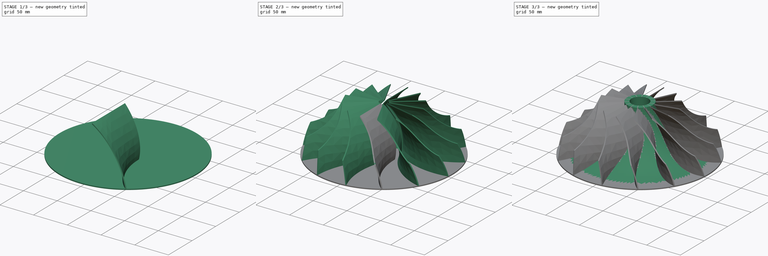
[diagram: build sequence overview — one tinted view per stage of 3, left to right]
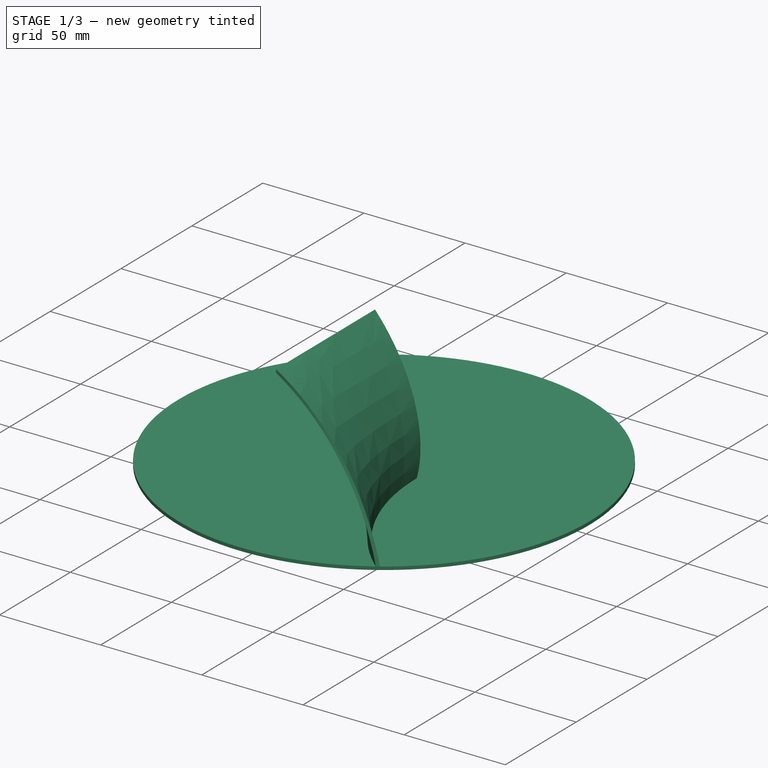
[diagram: stage 1 of 3 — iso view after this stage's code; geometry added in this stage tinted green]
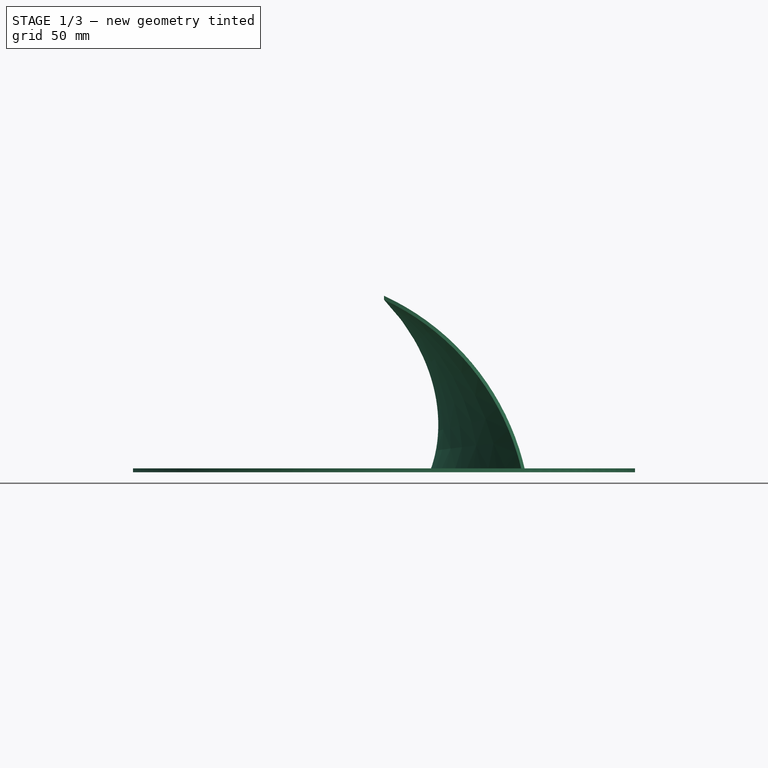
[diagram: stage 1 of 3 — front view after this stage's code; geometry added in this stage tinted green]
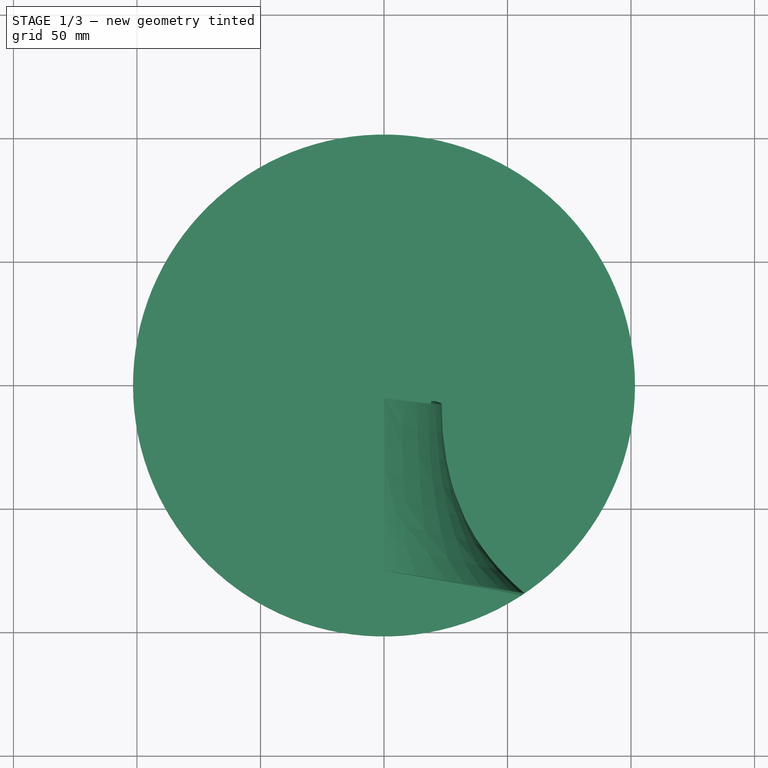
[diagram: stage 1 of 3 — top view after this stage's code; geometry added in this stage tinted green]
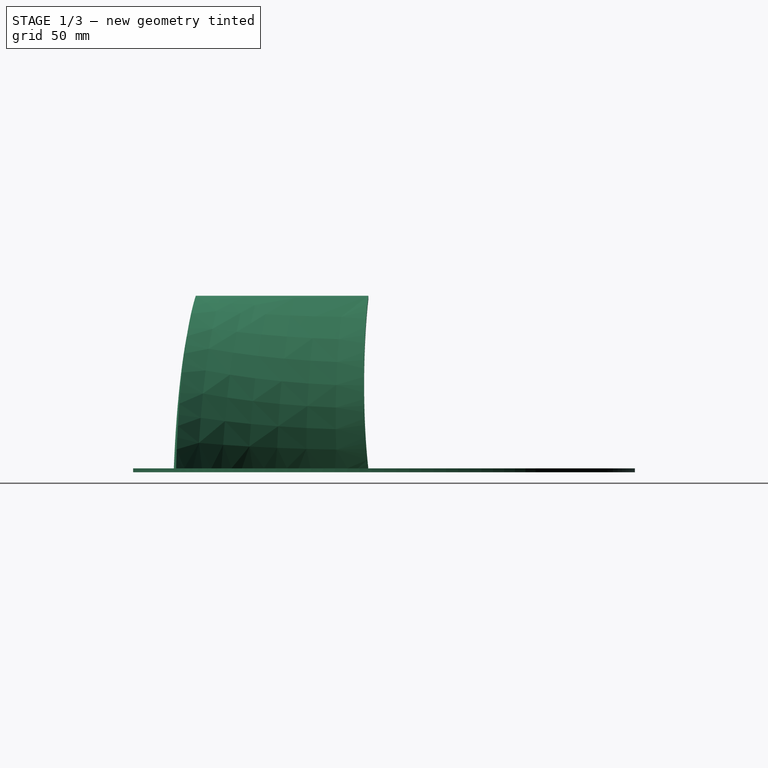
[diagram: stage 1 of 3 — right view after this stage's code; geometry added in this stage tinted green]
FCSTD DOCUMENT  (FreeCAD 0.21R33771 (Git))
Label: part
License: All rights reserved
LicenseURL: http://en.wikipedia.org/wiki/All_rights_reserved
objects: Sketcher::SketchObject×7, PartDesign::Plane×1, PartDesign::AdditivePipe×1, PartDesign::Pad×1, PartDesign::PolarPattern×1, PartDesign::Groove×1, PartDesign::Revolution×1, PartDesign::Pocket×1, PartDesign::Body×1
note: 20 computed .brp shape members not serialized (recipe doc carries the construction recipe); baked Part::Feature solids carry a one-line shape summary decoded from their .brp

FEATURE [Sketcher::SketchObject] Sketch
  FullyConstrained = true
  MapMode = 5
  Support = -> [XY_Plane]
  sketch-geometry (6):
    g0: Circle CenterX=0 CenterY=0 CenterZ=0 NormalX=0 NormalY=0 NormalZ=1 AngleXU=0 Radius=101.6
    g1: ArcOfCircle CenterX=122.237 CenterY=-6.34998 CenterZ=0 NormalX=0 NormalY=0 NormalZ=1 AngleXU=0 Radius=101.6 StartAngle=3.14159 EndAngle=4.01402
    g2: ArcOfCircle CenterX=122.237 CenterY=-6.34998 CenterZ=0 NormalX=0 NormalY=0 NormalZ=1 AngleXU=0 Radius=103.188 StartAngle=3.14159 EndAngle=4.0095
    g3: LineSegment StartX=19.05 StartY=-6.35 StartZ=0 EndX=20.6375 EndY=-6.35 EndZ=0
    g4: LineSegment StartX=19.05 StartY=-6.35 StartZ=0 EndX=19.05 EndY=0 EndZ=0
    g5: ArcOfCircle CenterX=0 CenterY=0 CenterZ=0 NormalX=0 NormalY=0 NormalZ=1 AngleXU=0 Radius=101.6 StartAngle=5.29068 EndAngle=5.30696
  constraints (17):
    c: Coincident(g0,g-1)
    c: Radius(g0) = 101.6
    c: DistanceY(g1,g0) = 6.35
    c: Coincident(g2,g1)
    c: Horizontal(g2,g1)
    c: DistanceX(g2,g1) = 1.5875
    c: PointOnObject(g1,g0)
    c: PointOnObject(g2,g0)
    c: Radius(g1) = 101.6
    c: Coincident(g3,g2)
    c: Coincident(g3,g1)
    c: DistanceX(g0,g2) = 19.05
    c: PointOnObject(g4,g-1)
    c: Tangent(g4,g2) = 1.5708
    c: Coincident(g5,g0)
    c: Coincident(g5,g2)
    c: Coincident(g5,g1)
FEATURE [Sketcher::SketchObject] Sketch001
  FullyConstrained = true
  MapMode = 5
  Placement = pos=(0,0,0) rot=(0.57735,0.57735,0.57735;2.0944rad)
  Support = -> [YZ_Plane]
  sketch-geometry (4):
    g0: LineSegment StartX=-76.2 StartY=69.85 StartZ=0 EndX=-6.35 EndY=69.85 EndZ=0
    g1: LineSegment StartX=-6.35 StartY=69.85 StartZ=0 EndX=-6.35 EndY=68.2625 EndZ=0
    g2: LineSegment StartX=-6.35 StartY=68.2625 StartZ=0 EndX=-76.2 EndY=68.2625 EndZ=0
    g3: LineSegment StartX=-76.2 StartY=68.2625 StartZ=0 EndX=-76.2 EndY=69.85 EndZ=0
  constraints (12):
    c: Coincident(g0,g1)
    c: Coincident(g1,g2)
    c: Coincident(g2,g3)
    c: Coincident(g3,g0)
    c: Horizontal(g0)
    c: Horizontal(g2)
    c: Vertical(g1)
    c: Vertical(g3)
    c: DistanceX(g1,g-1) = 6.35
    c: DistanceX(g2,g-1) = 76.2
    c: DistanceY(g3,g3) = 1.5875
    c: DistanceY(g-1,g0) = 69.85
FEATURE [PartDesign::Plane] DatumPlane
  Length = 262.528
  MapMode = 13
  Placement = pos=(18.5114,-79.1598,46.0375) rot=(0.056085,0.705994,0.705994;3.02954rad)
  ResizeMode = 0
  Support = -> [Sketch,Sketch001]
  Width = 125.153
FEATURE [Sketcher::SketchObject] Sketch002
  ExternalGeometry = -> [Sketch001,Sketch]
  FullyConstrained = true
  MapMode = 5
  Placement = pos=(18.5114,-79.1598,46.0375) rot=(0.056085,0.705994,0.705994;3.02954rad)
  Support = -> [DatumPlane]
  sketch-geometry (1):
    g0: ArcOfCircle CenterX=61.2239 CenterY=-70.0693 CenterZ=0 NormalX=0 NormalY=0 NormalZ=1 AngleXU=0 Radius=101.6 StartAngle=2.00213 EndAngle=2.9028
  constraints (3):
    c: Coincident(g0,g-4)
    c: Coincident(g0,g-3)
    c: Radius(g0) = 101.6
FEATURE [PartDesign::AdditivePipe] AdditivePipe
  AuxilleryCurvelinear = true
  AuxillerySpineTangent = false
  Binormal = (0,0,0)
  Mode = 0
  Profile = -> Sketch
  Refine = true
  Sections = -> [Sketch001]
  Spine = -> Sketch002
  SpineTangent = false
  Transformation = 1
  Transition = 0
FEATURE [Sketcher::SketchObject] Sketch003
  FullyConstrained = true
  MapMode = 5
  Support = -> [XY_Plane]
  sketch-geometry (1):
    g0: Circle CenterX=0 CenterY=0 CenterZ=0 NormalX=0 NormalY=0 NormalZ=1 AngleXU=0 Radius=101.6
  constraints (2):
    c: Coincident(g0,g-1)
    c: Radius(g0) = 101.6
FEATURE [PartDesign::Pad] Pad
  BaseFeature = -> AdditivePipe
  Direction = (0,0,1)
  Length = 1.5875
  Length2 = 10
  Profile = -> Sketch003
  ReferenceAxis = -> Sketch003 [N_Axis]
  Refine = true
  Reversed = true
  Type = 0
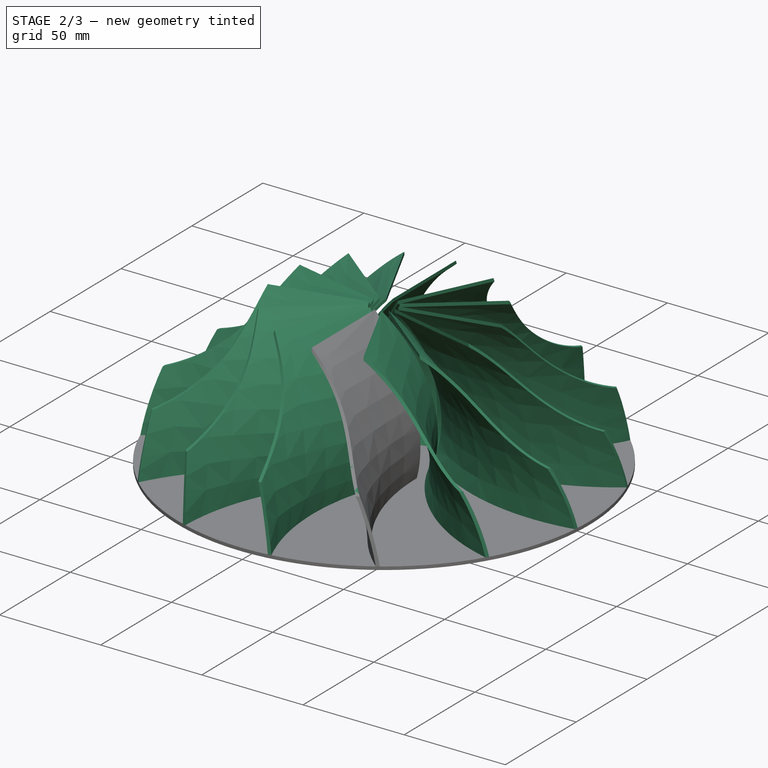
[diagram: stage 2 of 3 — iso view after this stage's code; geometry added in this stage tinted green]
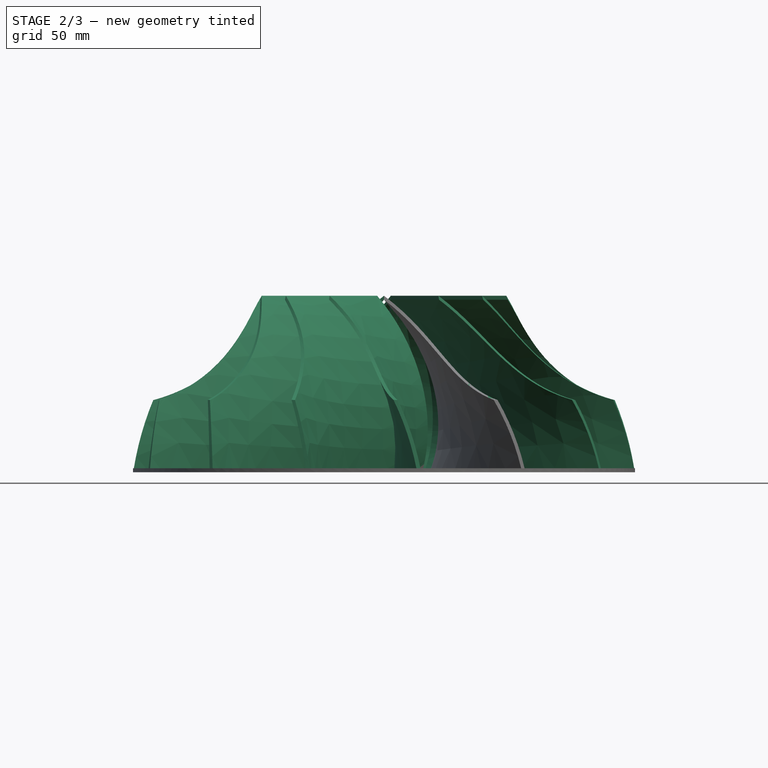
[diagram: stage 2 of 3 — front view after this stage's code; geometry added in this stage tinted green]
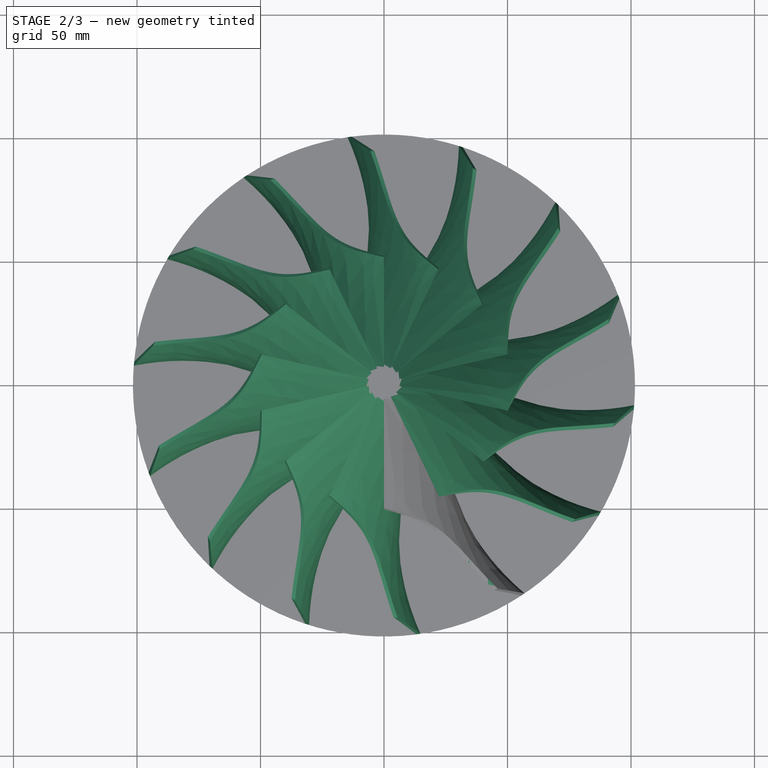
[diagram: stage 2 of 3 — top view after this stage's code; geometry added in this stage tinted green]
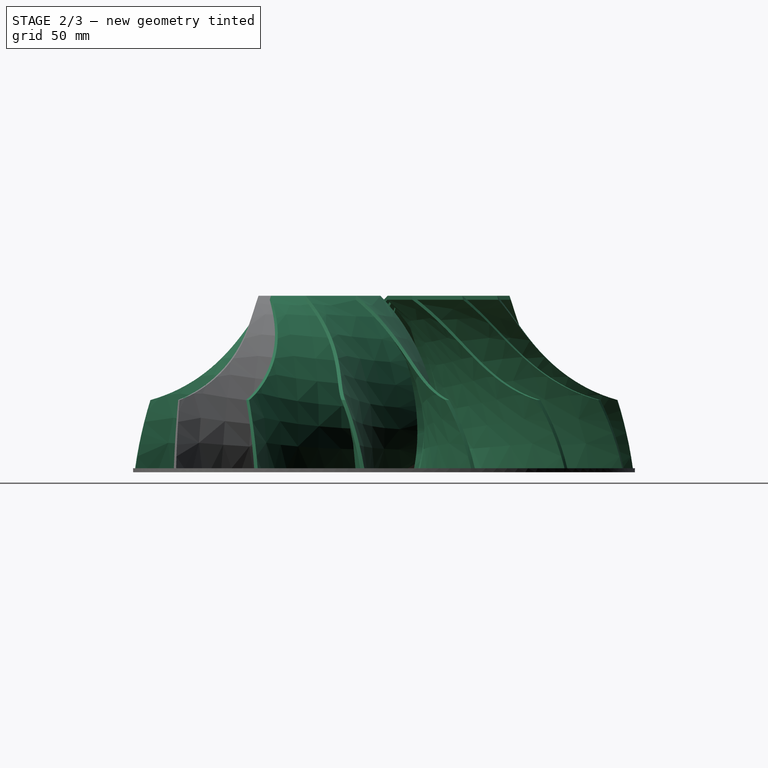
[diagram: stage 2 of 3 — right view after this stage's code; geometry added in this stage tinted green]
FEATURE [PartDesign::PolarPattern] PolarPattern
  Angle = 360
  Axis = -> Sketch [N_Axis]
  BaseFeature = -> Pad
  Occurrences = 14
  Originals = -> [AdditivePipe]
  Refine = true
FEATURE [Sketcher::SketchObject] Sketch004
  FullyConstrained = true
  MapMode = 5
  Placement = pos=(0,0,0) rot=(0.57735,0.57735,0.57735;2.0944rad)
  Support = -> [YZ_Plane]
  sketch-geometry (5):
    g0: ArcOfCircle CenterX=-111.375 CenterY=88.9 CenterZ=0 NormalX=0 NormalY=0 NormalZ=1 AngleXU=0 Radius=63.5 StartAngle=4.71239 EndAngle=5.97849
    g1: LineSegment StartX=-111.375 StartY=25.4 StartZ=0 EndX=-138.43 EndY=25.4 EndZ=0
    g2: LineSegment StartX=-138.43 StartY=25.4 StartZ=0 EndX=-138.43 EndY=90.678 EndZ=0
    g3: LineSegment StartX=-138.43 StartY=90.678 StartZ=0 EndX=-50.8 EndY=90.678 EndZ=0
    g4: LineSegment StartX=-50.8 StartY=90.678 StartZ=0 EndX=-50.8 EndY=69.85 EndZ=0
  constraints (15):
    c: DistanceY(g-1,g0) = 69.85
    c: DistanceY(g-1,g0) = 25.4
    c: DistanceX(g0,g-1) = 50.8
    c: Radius(g0) = 63.5
    c: Tangent(g0,g1) = 1.5708
    c: Coincident(g1,g2)
    c: Vertical(g2)
    c: Coincident(g2,g3)
    c: Horizontal(g3)
    c: Coincident(g3,g4)
    c: Coincident(g4,g0)
    c: Vertical(g4)
    c: Horizontal(g1)
    c: DistanceX(g1,g-1) = 138.43
    c: DistanceY(g-1,g3) = 90.678
FEATURE [PartDesign::Groove] Groove
  Angle = 360
  Axis = (-2e-16,3e-16,1)
  Base = (0,0,0)
  BaseFeature = -> PolarPattern
  Profile = -> Sketch004
  ReferenceAxis = -> Sketch004 [V_Axis]
  Refine = true
  Reversed = true
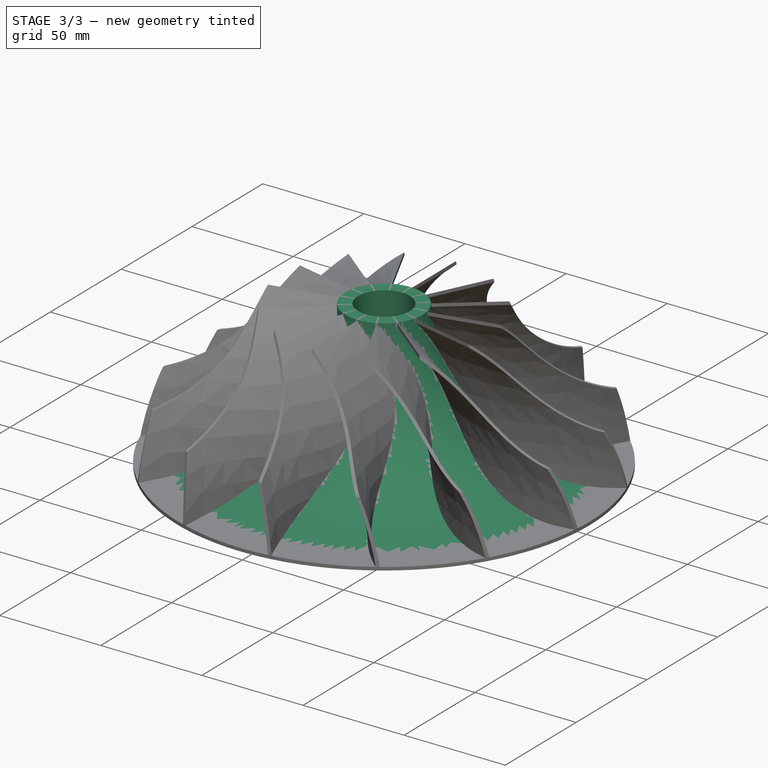
[diagram: stage 3 of 3 — iso view after this stage's code; geometry added in this stage tinted green]
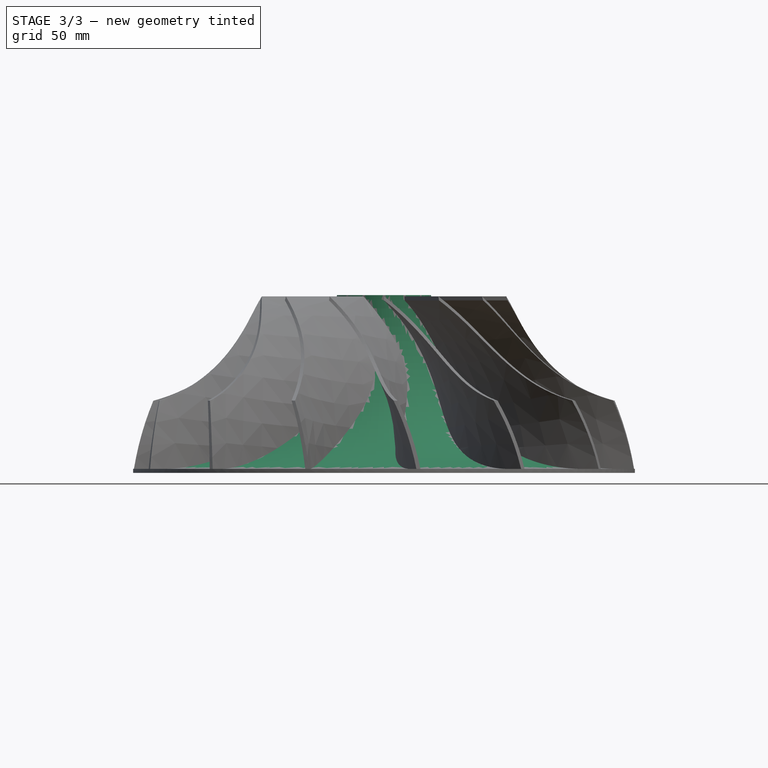
[diagram: stage 3 of 3 — front view after this stage's code; geometry added in this stage tinted green]
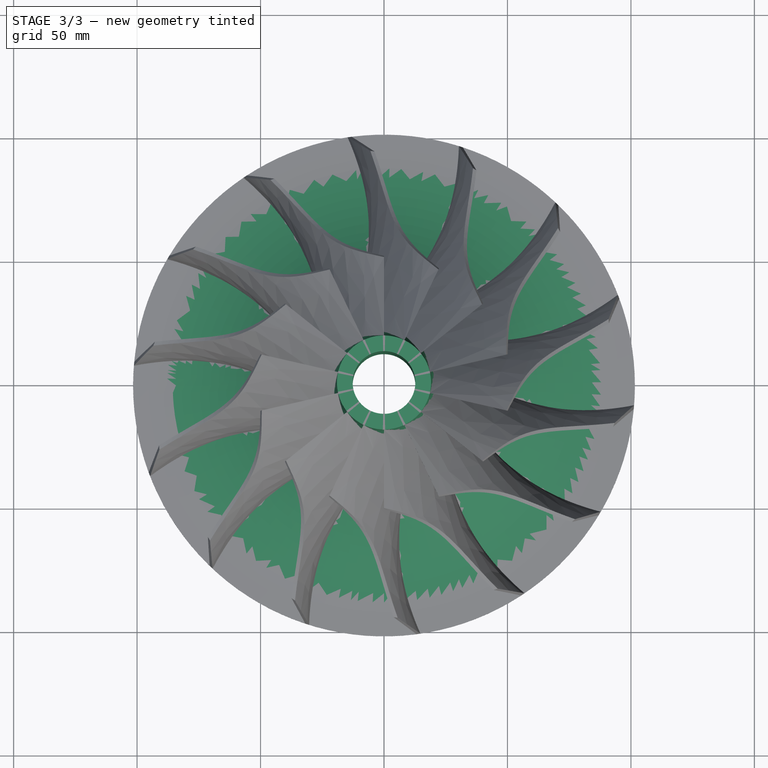
[diagram: stage 3 of 3 — top view after this stage's code; geometry added in this stage tinted green]
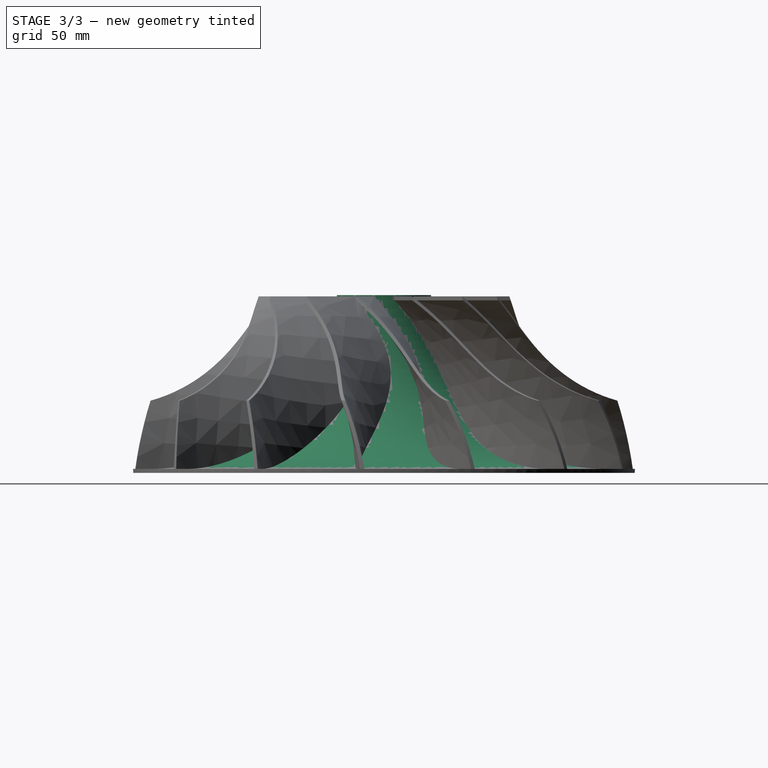
[diagram: stage 3 of 3 — right view after this stage's code; geometry added in this stage tinted green]
FEATURE [Sketcher::SketchObject] Sketch005
  FullyConstrained = true
  MapMode = 5
  Placement = pos=(0,0,0) rot=(1,0,0;1.5708rad)
  Support = -> [XZ_Plane]
  sketch-geometry (4):
    g0: LineSegment StartX=0 StartY=0 StartZ=0 EndX=0 EndY=70.358 EndZ=0
    g1: LineSegment StartX=0 StartY=70.358 StartZ=0 EndX=-19.05 EndY=70.358 EndZ=0
    g2: ArcOfCircle CenterX=-95.25 CenterY=76.4425 CenterZ=0 NormalX=0 NormalY=0 NormalZ=1 AngleXU=0 Radius=76.4425 StartAngle=4.71239 EndAngle=6.2035
    g3: LineSegment StartX=0 StartY=0 StartZ=0 EndX=-95.25 EndY=0 EndZ=0
  constraints (11):
    c: Coincident(g0,g-1)
    c: PointOnObject(g0,g-2)
    c: Coincident(g1,g0)
    c: Horizontal(g1)
    c: Coincident(g2,g1)
    c: DistanceX(g2,g0) = 95.25
    c: Coincident(g3,g0)
    c: PointOnObject(g3,g-1)
    c: Tangent(g2,g3) = 1.5708
    c: DistanceX(g1,g1) = 19.05
    c: DistanceY(g0,g0) = 70.358
FEATURE [PartDesign::Revolution] Revolution
  Angle = 360
  Axis = (1e-16,1e-16,1)
  Base = (0,0,0)
  BaseFeature = -> Groove
  Profile = -> Sketch005
  ReferenceAxis = -> Z_Axis
  Refine = true
FEATURE [Sketcher::SketchObject] Sketch006
  FullyConstrained = true
  MapMode = 5
  Placement = pos=(7.7e-15,7.7e-15,70.358) rot=(0,0,1;0rad)
  Support = -> [Revolution]
  sketch-geometry (1):
    g0: Circle CenterX=0 CenterY=0 CenterZ=0 NormalX=0 NormalY=0 NormalZ=1 AngleXU=0 Radius=12.7
  constraints (2):
    c: Coincident(g0,g-1)
    c: Radius(g0) = 12.7
FEATURE [PartDesign::Pocket] Pocket
  BaseFeature = -> Revolution
  Direction = (-1e-16,-1e-16,-1)
  Length = 5
  Length2 = 5
  Profile = -> Sketch006
  ReferenceAxis = -> Sketch006 [N_Axis]
  Refine = true
  Type = 1
FEATURE [PartDesign::Body] Body
  Group = -> [Sketch,Sketch001,DatumPlane,Sketch002,AdditivePipe,Sketch003,Pad,PolarPattern,Sketch004,Groove,Sketch005,Revolution,Sketch006,Pocket]
  Origin = -> Origin
  Tip = -> Pocket
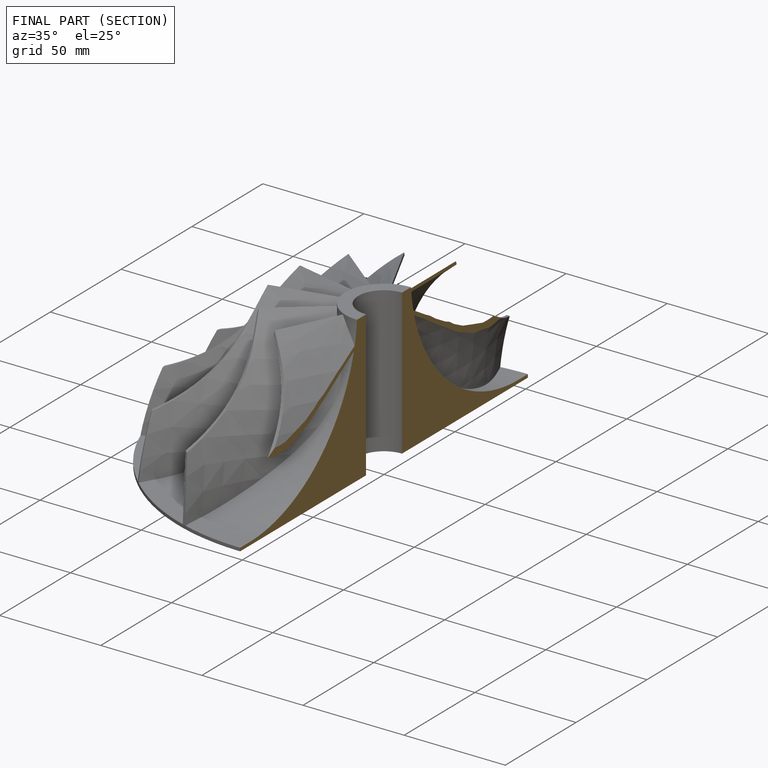
[diagram: finished part — half-section view (interior)]
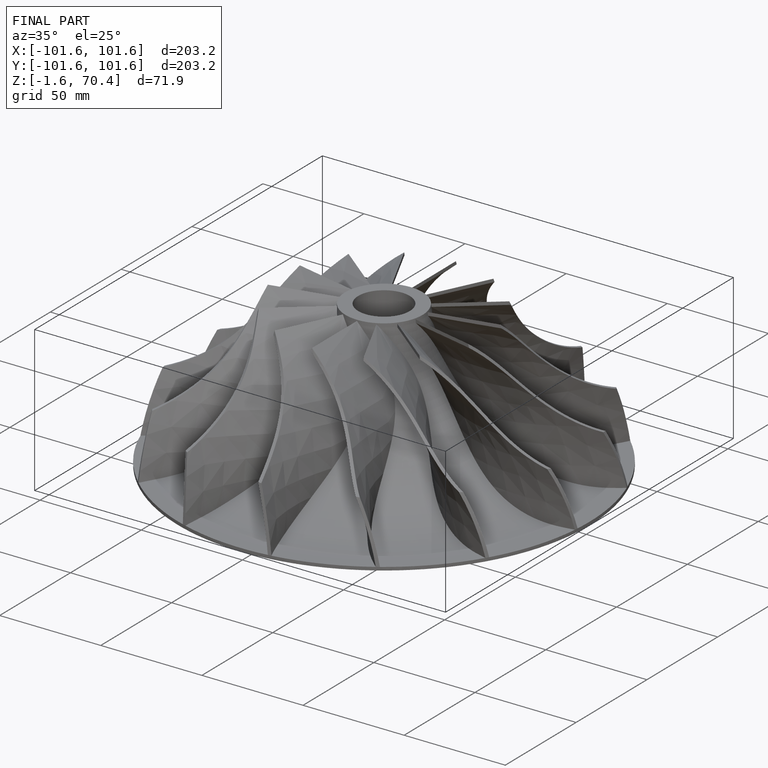
[diagram: finished part — iso view with bounding-box wireframe]
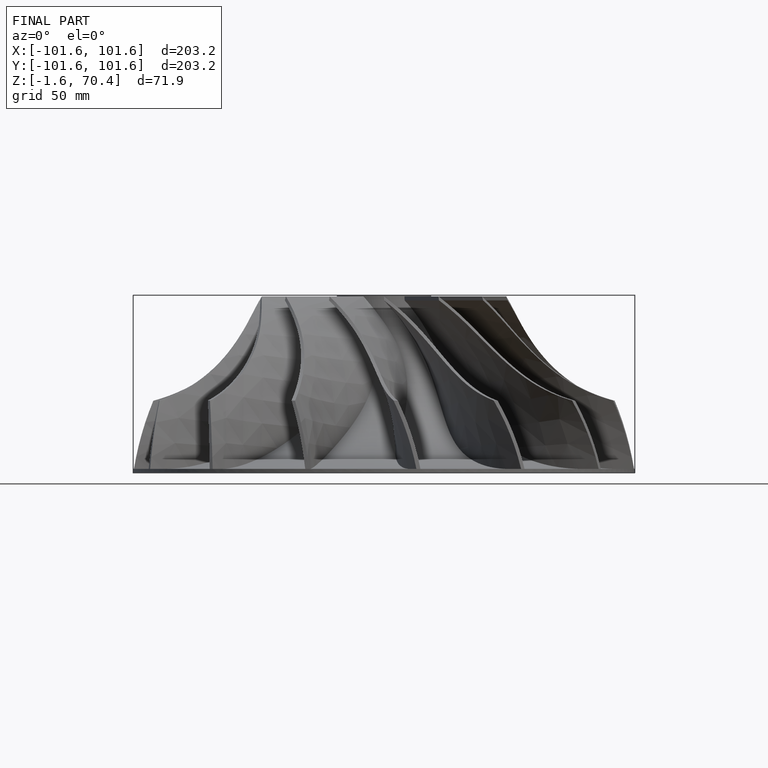
[diagram: finished part — front view with bounding-box wireframe]
